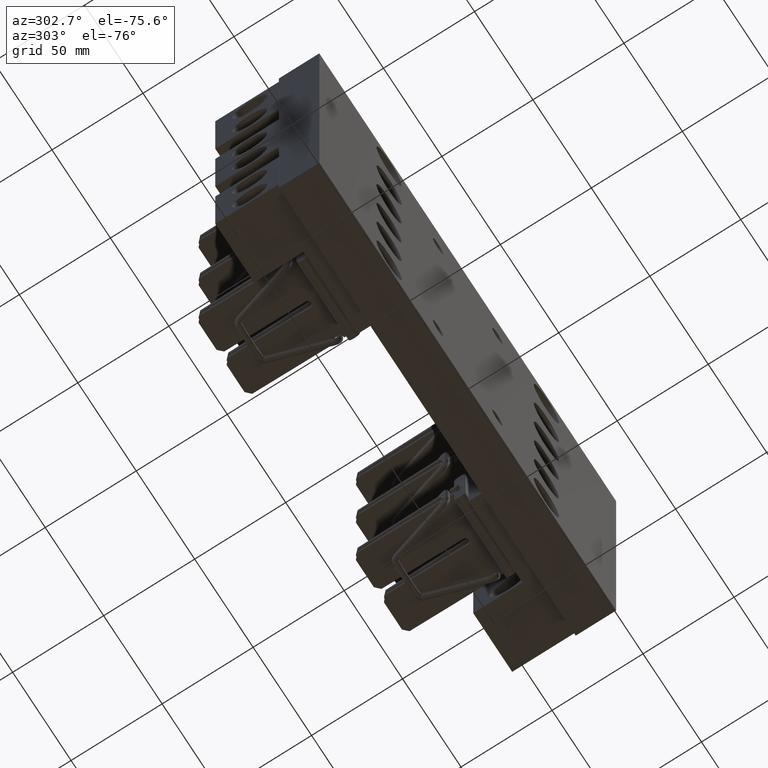
[diagram: clean part render]
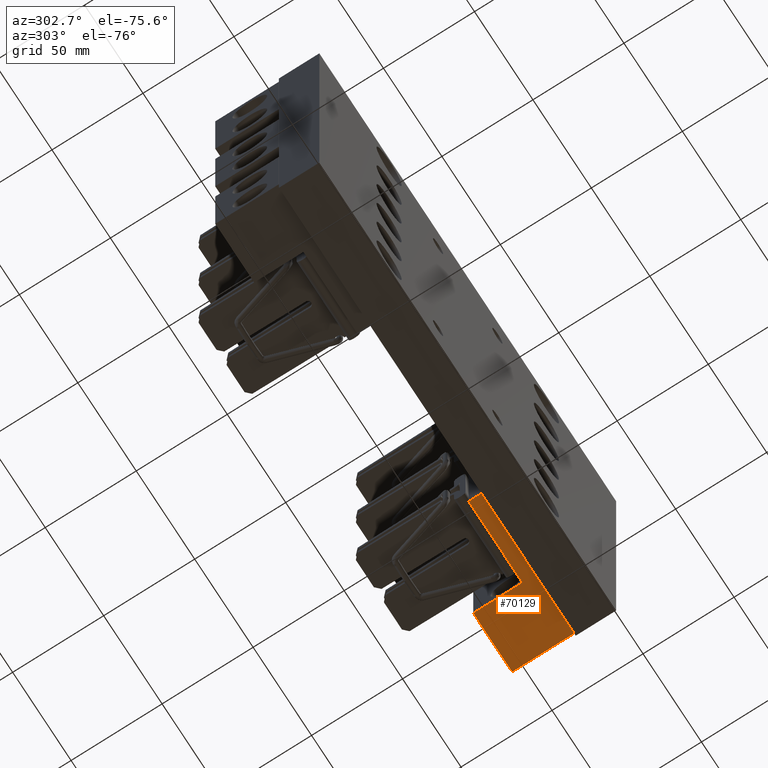
[diagram: same view with one face highlighted and labeled with its STEP entity id]
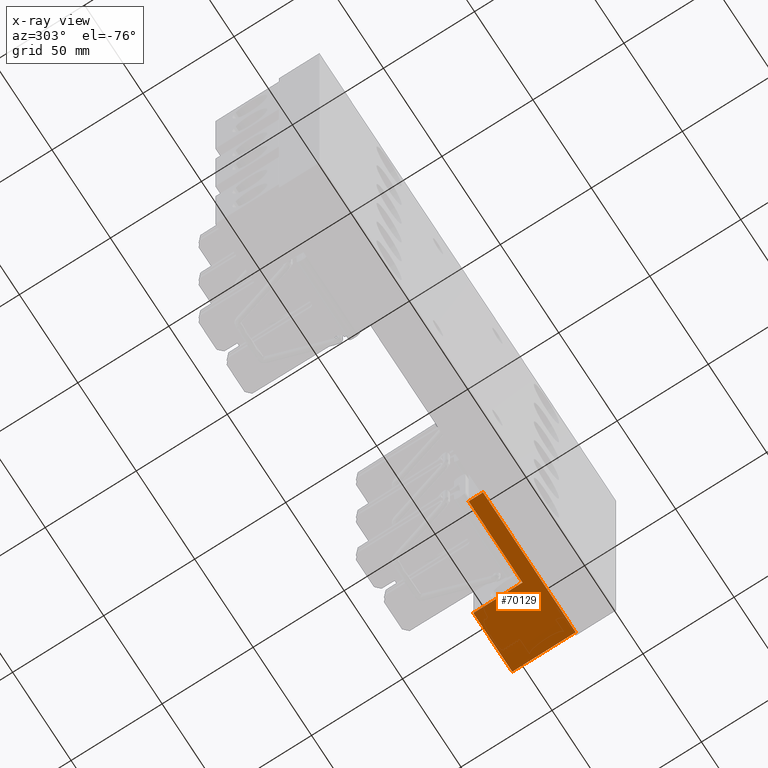
[diagram: x-ray of the same camera — body ghosted, the highlighted face saturated]
A machine part, auxiliary view. The second image highlights one B-rep face of the part: STEP entity #70129.
The next image is the same camera in x-ray: the body ghosted, the highlighted face saturated — about 0% of this face is hidden behind the body in this view.
In plain terms, the highlighted planar face has unit normal (0, 0, -1).
Its self-contained STEP definition (entity closure, byte-faithful):
#21 = AXIS2_PLACEMENT_3D ( 'NONE', #67536, #67538, #67539 ) ;
#7070 = EDGE_CURVE ( 'NONE', #13716, #13694, #8664, .T. ) ;
#7135 = EDGE_CURVE ( 'NONE', #13680, #13716, #8808, .T. ) ;
#7179 = EDGE_CURVE ( 'NONE', #13686, #13684, #8903, .T. ) ;
#7221 = EDGE_CURVE ( 'NONE', #13684, #13680, #8991, .T. ) ;
#7289 = EDGE_CURVE ( 'NONE', #13694, #13685, #9124, .T. ) ;
#8664 = LINE ( 'NONE', #42937, #8668 ) ;
#8668 = VECTOR ( 'NONE', #42938, 39.37007874015748100 ) ;
#8808 = LINE ( 'NONE', #53538, #8813 ) ;
#8813 = VECTOR ( 'NONE', #53539, 39.37007874015748100 ) ;
#8903 = LINE ( 'NONE', #53704, #8909 ) ;
#8909 = VECTOR ( 'NONE', #53707, 39.37007874015748100 ) ;
#8991 = LINE ( 'NONE', #53813, #8995 ) ;
#8995 = VECTOR ( 'NONE', #53836, 39.37007874015748100 ) ;
#9124 = LINE ( 'NONE', #54084, #9135 ) ;
#9135 = VECTOR ( 'NONE', #54072, 39.37007874015748100 ) ;
#11106 = CARTESIAN_POINT ( 'NONE',  ( 5.002000000000000700, 2.249999999999999600, -3.749999999999999100 ) ) ;
#11110 = DIRECTION ( 'NONE',  ( -1.490472088164152300E-017, -1.000000000000000000, -7.792989036743785500E-019 ) ) ;
#11277 = CARTESIAN_POINT ( 'NONE',  ( 1.877000000000000700, 1.186999999999999800, -3.750000000000000000 ) ) ;
#11281 = CARTESIAN_POINT ( 'NONE',  ( 1.877000000000000700, 0.8749999999999997800, -3.750000000000000000 ) ) ;
#11282 = CARTESIAN_POINT ( 'NONE',  ( 5.002000000000000700, 2.249999999999999600, -3.749999999999999100 ) ) ;
#11283 = CARTESIAN_POINT ( 'NONE',  ( 5.002000000000000700, 0.8750000000000000000, -3.749999999999999100 ) ) ;
#11291 = CARTESIAN_POINT ( 'NONE',  ( 3.690000000000001300, 2.250000000000000400, -3.749999999999999600 ) ) ;
#11313 = CARTESIAN_POINT ( 'NONE',  ( 3.690000000000001300, 1.186999999999999600, -3.749999999999999600 ) ) ;
#12182 = EDGE_CURVE ( 'NONE', #13685, #13686, #63271, .T. ) ;
#13680 = VERTEX_POINT ( 'NONE', #11277 ) ;
#13684 = VERTEX_POINT ( 'NONE', #11281 ) ;
#13685 = VERTEX_POINT ( 'NONE', #11282 ) ;
#13686 = VERTEX_POINT ( 'NONE', #11283 ) ;
#13694 = VERTEX_POINT ( 'NONE', #11291 ) ;
#13716 = VERTEX_POINT ( 'NONE', #11313 ) ;
#42937 = CARTESIAN_POINT ( 'NONE',  ( 3.690000000000001300, 1.186999999999999600, -3.749999999999999600 ) ) ;
#42938 = DIRECTION ( 'NONE',  ( -3.469446951953614800E-017, 1.000000000000000000, 7.792989036743702700E-019 ) ) ;
#53538 = CARTESIAN_POINT ( 'NONE',  ( 1.877000000000000700, 1.186999999999999800, -3.750000000000000000 ) ) ;
#53539 = DIRECTION ( 'NONE',  ( 1.000000000000000000, -7.831634102917855600E-017, 1.665334536937734800E-016 ) ) ;
#53704 = CARTESIAN_POINT ( 'NONE',  ( 5.002000000000000700, 0.8750000000000000000, -3.749999999999999100 ) ) ;
#53707 = DIRECTION ( 'NONE',  ( -1.000000000000000000, -3.469446951953614200E-017, -1.665334536937734800E-016 ) ) ;
#53813 = CARTESIAN_POINT ( 'NONE',  ( 1.877000000000000700, 0.8749999999999997800, -3.750000000000000000 ) ) ;
#53836 = DIRECTION ( 'NONE',  ( -3.469446951953614800E-017, 1.000000000000000000, 7.792989036743702700E-019 ) ) ;
#54072 = DIRECTION ( 'NONE',  ( 1.000000000000000000, -1.735256519487765900E-016, 1.665334536937734800E-016 ) ) ;
#54084 = CARTESIAN_POINT ( 'NONE',  ( 3.690000000000001300, 2.250000000000000400, -3.749999999999999600 ) ) ;
#63271 = LINE ( 'NONE', #11106, #63283 ) ;
#63283 = VECTOR ( 'NONE', #11110, 39.37007874015748100 ) ;
#67519 = PLANE ( 'NONE',  #21 ) ;
#67536 = CARTESIAN_POINT ( 'NONE',  ( 5.002000000000000700, 0.8750000000000000000, -3.749999999999999100 ) ) ;
#67538 = DIRECTION ( 'NONE',  ( 1.665334536937734800E-016, 7.792989036743760500E-019, -1.000000000000000000 ) ) ;
#67539 = DIRECTION ( 'NONE',  ( -1.000000000000000000, -3.469446951953614200E-017, -1.665334536937734800E-016 ) ) ;
#69744 = FACE_OUTER_BOUND ( 'NONE', #82154, .T. ) ;
#70129 = ADVANCED_FACE ( 'NONE', ( #69744 ), #67519, .T. ) ;
#74919 = ORIENTED_EDGE ( 'NONE', *, *, #12182, .T. ) ;
#74922 = ORIENTED_EDGE ( 'NONE', *, *, #7179, .T. ) ;
#74925 = ORIENTED_EDGE ( 'NONE', *, *, #7221, .T. ) ;
#74927 = ORIENTED_EDGE ( 'NONE', *, *, #7135, .T. ) ;
#74929 = ORIENTED_EDGE ( 'NONE', *, *, #7070, .T. ) ;
#74932 = ORIENTED_EDGE ( 'NONE', *, *, #7289, .T. ) ;
#82154 = EDGE_LOOP ( 'NONE', ( #74919, #74922, #74925, #74927, #74929, #74932 ) ) ;